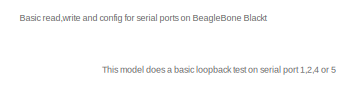
[diagram: root canvas - part 1/2, top center region]
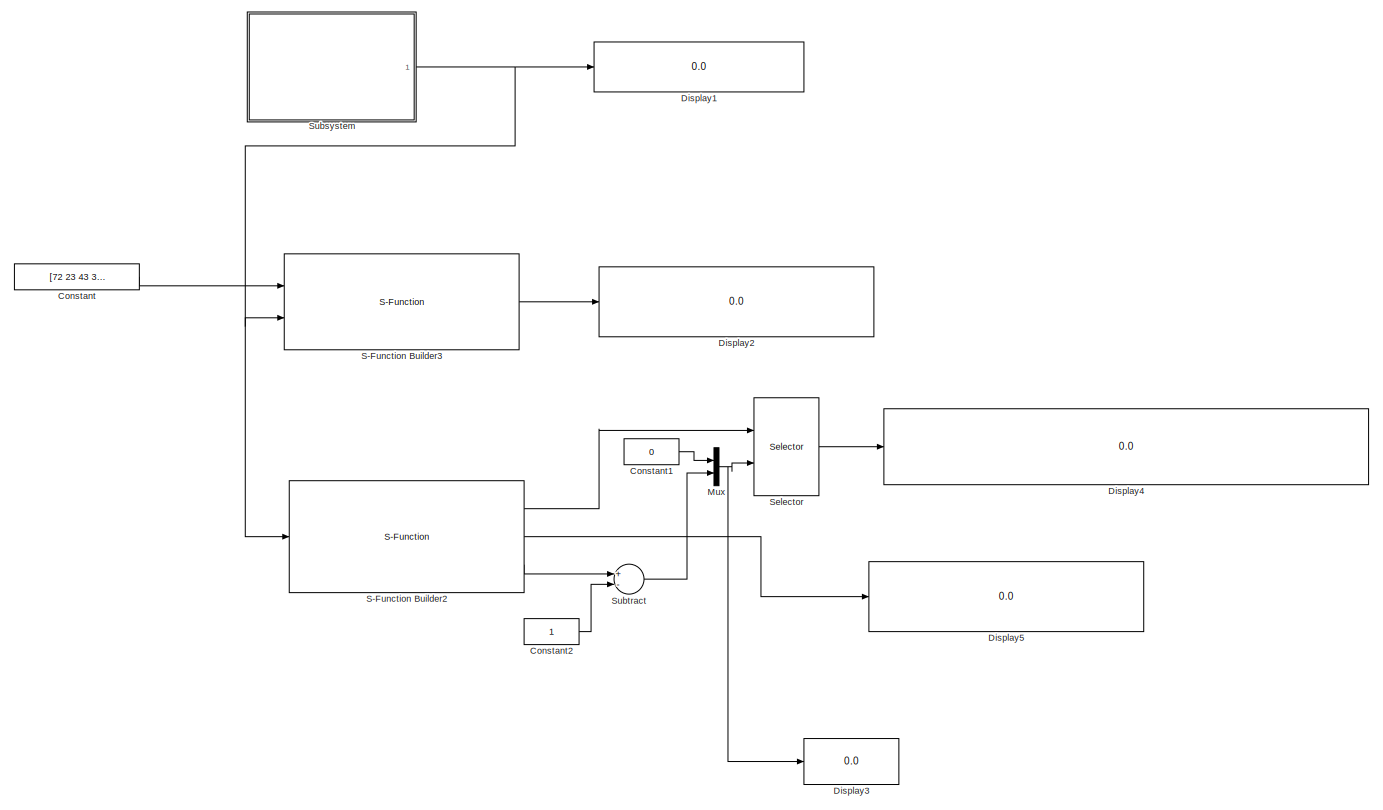
[diagram: root canvas - part 2/2, most of the canvas]
MODEL slx_53edc867c239
KIND model
BLOCK [Constant] Constant
  OutDataTypeStr = uint8
  SampleTime = 1
  Value = [72 23 43 34 32 56]
BLOCK [Constant] Constant1
  OutDataTypeStr = int16
  Value = 0
BLOCK [Constant] Constant2
  OutDataTypeStr = int16
BLOCK [Display] Display1
  Decimation = 1
  Ports = [1]
BLOCK [Display] Display2
  Decimation = 1
  Ports = [1]
BLOCK [Display] Display3
  Decimation = 1
  Ports = [1]
BLOCK [Display] Display4
  Decimation = 1
  Ports = [1]
BLOCK [Display] Display5
  Decimation = 1
  Ports = [1]
BLOCK [Mux] Mux
  DisplayOption = bar
  Inputs = 2
  Ports = [2, 1]
BLOCK [S-Function] S-Function Builder2
  CopyFcn = set_param(gcbh,'LinkStatus','none')
  EnableBusSupport = off
  FunctionName = BBB_UART_READ
  InitFcn = try, set_param(gcb,'FunctionName','BBB_UART_READ'), end
  OpenFcn = sfunctionwizard(gcbh)
  Ports = [1, 3]
  PreSaveFcn = try, set_param(gcb,'FunctionName','BBB_UART_READ'), end
  SFunctionModules = BBB_UART_READ_wrapper
BLOCK [S-Function] S-Function Builder3
  CopyFcn = set_param(gcbh,'LinkStatus','none')
  EnableBusSupport = off
  FunctionName = BBB_UART_WRITE
  InitFcn = try, set_param(gcb,'FunctionName','BBB_UART_WRITE'), end
  OpenFcn = sfunctionwizard(gcbh)
  Ports = [2, 1]
  PreSaveFcn = try, set_param(gcb,'FunctionName','BBB_UART_WRITE'), end
  SFunctionModules = BBB_UART_WRITE_wrapper
BLOCK [Selector] Selector
  IndexMode = Zero-based
  IndexOptions = Starting and ending indices (port)
  Indices = [1 3]
  InputPortWidth = 40
  Ports = [2, 1]
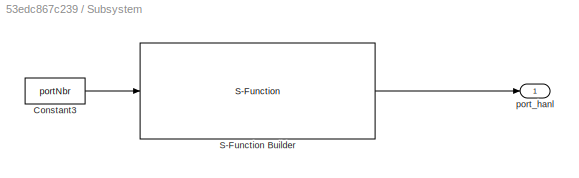
BLOCK [SubSystem] Subsystem
  Ports = [0, 1]
  RequestExecContextInheritance = off
BLOCK [Constant] Subsystem/Constant3
  OutDataTypeStr = int8
  Value = portNbr
BLOCK [S-Function] Subsystem/S-Function Builder
  CopyFcn = set_param(gcbh,'LinkStatus','none')
  EnableBusSupport = off
  FunctionName = BBB_UART_CONFIG
  InitFcn = try, set_param(gcb,'FunctionName','BBB_UART_CONFIG'), end
  OpenFcn = sfunctionwizard(gcbh)
  Ports = [1, 1]
  PreSaveFcn = try, set_param(gcb,'FunctionName','BBB_UART_CONFIG'), end
  SFunctionModules = BBB_UART_CONFIG_wrapper
BLOCK [Outport] Subsystem/port_hanl
  IconDisplay = Port number
BLOCK [Sum] Subtract
  InputSameDT = off
  Inputs = +-
  OutDataTypeStr = Inherit: Inherit via internal rule
  Ports = [2, 1]
  SaturateOnIntegerOverflow = off
ANNOTATION (root): This model does a basic loopback test on serial port 1,2,4 or 5
ANNOTATION (root): Basic read,write and config for serial ports on BeagleBone Black t
LINE Constant1:1 -> Mux:1
LINE Constant2:1 -> Subtract:2
LINE Constant:1 -> S-Function Builder3:1
NET Mux:1 -> Display3:1, Selector:2
LINE S-Function Builder2:1 -> Selector:1
LINE S-Function Builder2:2 -> Display5:1
LINE S-Function Builder2:3 -> Subtract:1
LINE S-Function Builder3:1 -> Display2:1
LINE Selector:1 -> Display4:1
LINE Subsystem/Constant3:1 -> Subsystem/S-Function Builder:1
LINE Subsystem/S-Function Builder:1 -> Subsystem/port_hanl:1
NET Subsystem:1 -> Display1:1, S-Function Builder2:1, S-Function Builder3:2
LINE Subtract:1 -> Mux:2
note: NET lines group one-source signal fan-out (src -> all destinations, sorted); 1:1 wires keep LINE
